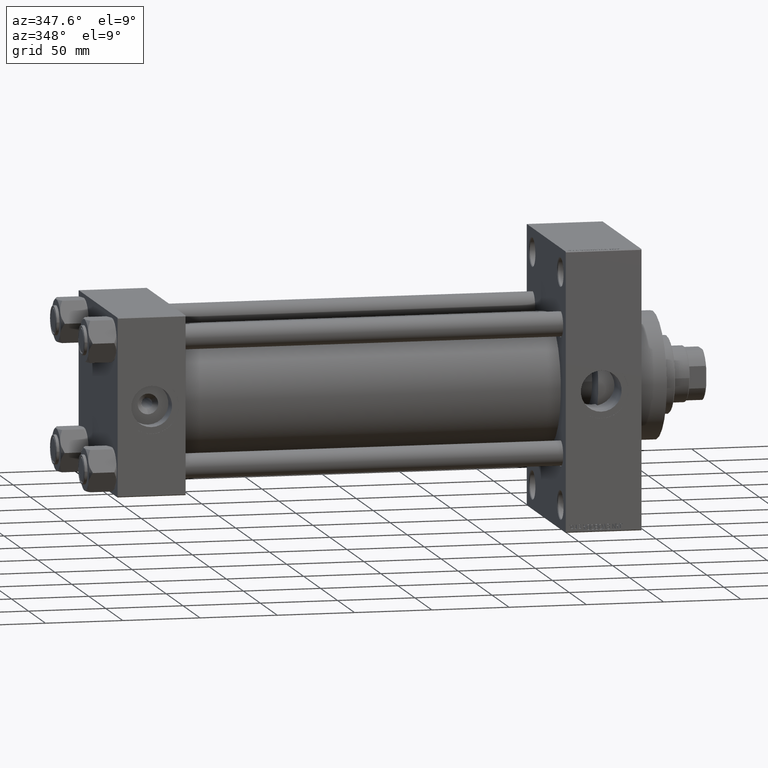
[diagram: clean part render]
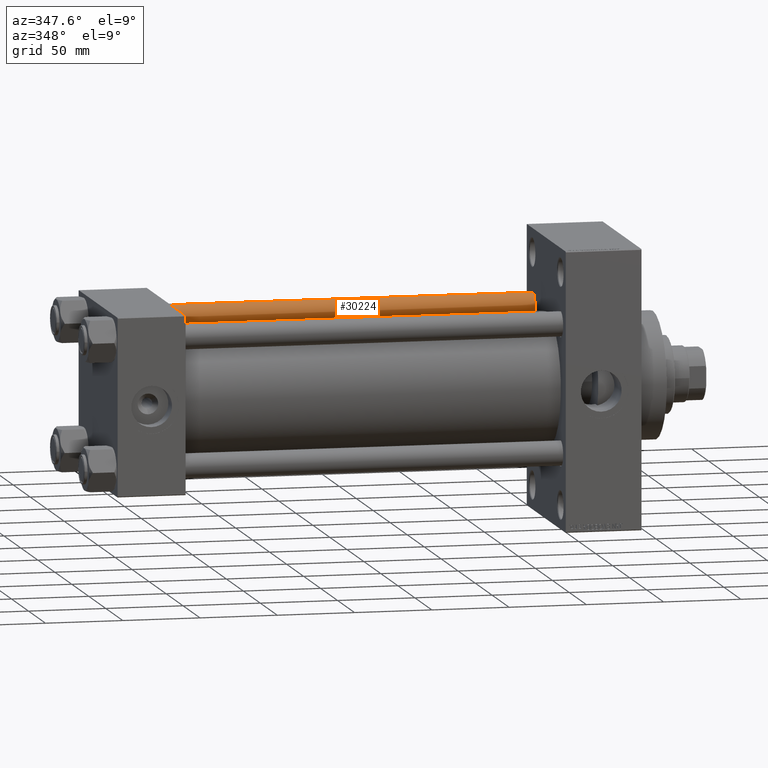
[diagram: same view with one face highlighted and labeled with its STEP entity id]
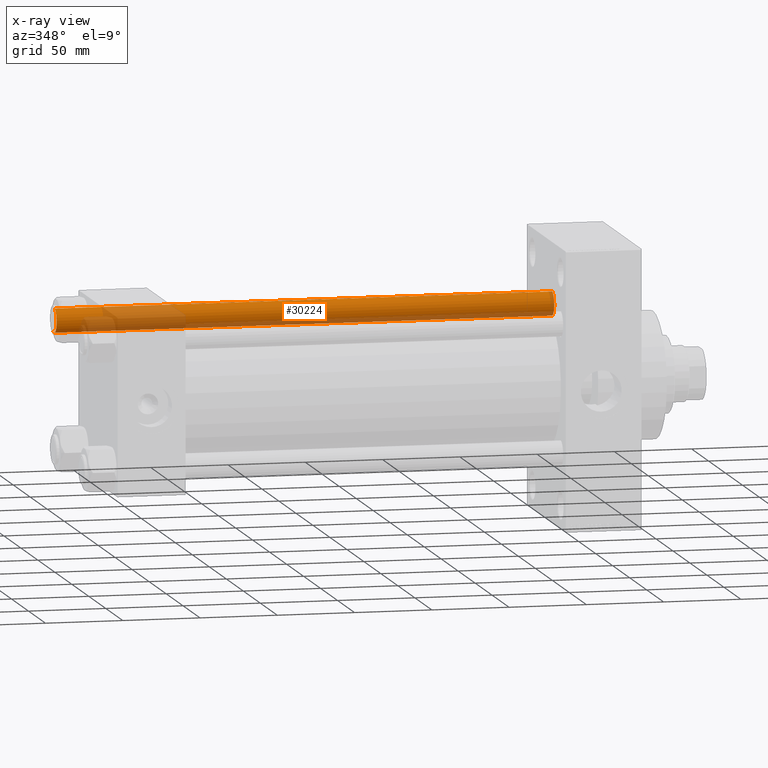
[diagram: x-ray of the same camera — body ghosted, the highlighted face saturated]
A machine part, auxiliary view. The second image highlights one B-rep face of the part: STEP entity #30224.
The next image is the same camera in x-ray: the body ghosted, the highlighted face saturated — about 32% of this face is hidden behind the body in this view.
In plain terms, the highlighted cylindrical surface (edge-blend (fillet) strip) has radius 8 mm, axis along (-1, -0, 0).
Its self-contained STEP definition (entity closure, byte-faithful):
#2716 = CIRCLE ( 'NONE', #29663, 8.000000000000000000 ) ;
#3027 = ORIENTED_EDGE ( 'NONE', *, *, #6886, .T. ) ;
#4081 = EDGE_CURVE ( 'NONE', #8174, #45672, #30940, .T. ) ;
#5683 = CIRCLE ( 'NONE', #44930, 8.000000000000000000 ) ;
#6159 = DIRECTION ( 'NONE',  ( -1.000000000000000000, 0.000000000000000000, 0.000000000000000000 ) ) ;
#6886 = EDGE_CURVE ( 'NONE', #32280, #45672, #2716, .T. ) ;
#8174 = VERTEX_POINT ( 'NONE', #11713 ) ;
#10228 = EDGE_CURVE ( 'NONE', #42285, #32280, #10539, .T. ) ;
#10539 = LINE ( 'NONE', #21608, #35921 ) ;
#10595 = DIRECTION ( 'NONE',  ( -0.000000000000000000, -0.000000000000000000, 1.000000000000000000 ) ) ;
#11713 = CARTESIAN_POINT ( 'NONE',  ( 8.000000000000000000, 9.797174393178825657E-16, 322.5000000000000000 ) ) ;
#20099 = DIRECTION ( 'NONE',  ( -0.000000000000000000, -0.000000000000000000, -1.000000000000000000 ) ) ;
#21608 = CARTESIAN_POINT ( 'NONE',  ( -8.000000000000000000, 0.000000000000000000, 323.0000000000000000 ) ) ;
#22819 = DIRECTION ( 'NONE',  ( 0.000000000000000000, 0.000000000000000000, -1.000000000000000000 ) ) ;
#23817 = CARTESIAN_POINT ( 'NONE',  ( -8.000000000000000000, 0.000000000000000000, 0.5000000000000004441 ) ) ;
#24477 = FACE_OUTER_BOUND ( 'NONE', #24944, .T. ) ;
#24944 = EDGE_LOOP ( 'NONE', ( #47622, #44960, #39557, #3027 ) ) ;
#25281 = DIRECTION ( 'NONE',  ( 1.000000000000000000, 0.000000000000000000, 0.000000000000000000 ) ) ;
#29663 = AXIS2_PLACEMENT_3D ( 'NONE', #43579, #10595, #25281 ) ;
#30224 = ADVANCED_FACE ( 'NONE', ( #24477 ), #43731, .T. ) ;
#30271 = CARTESIAN_POINT ( 'NONE',  ( 0.000000000000000000, 0.000000000000000000, 322.5000000000000000 ) ) ;
#30940 = LINE ( 'NONE', #38880, #34311 ) ;
#30988 = AXIS2_PLACEMENT_3D ( 'NONE', #43249, #39161, #6159 ) ;
#32280 = VERTEX_POINT ( 'NONE', #23817 ) ;
#32930 = DIRECTION ( 'NONE',  ( -0.000000000000000000, -0.000000000000000000, -1.000000000000000000 ) ) ;
#34311 = VECTOR ( 'NONE', #20099, 1000.000000000000000 ) ;
#35921 = VECTOR ( 'NONE', #32930, 1000.000000000000000 ) ;
#36384 = DIRECTION ( 'NONE',  ( 1.000000000000000000, 0.000000000000000000, 0.000000000000000000 ) ) ;
#37777 = CARTESIAN_POINT ( 'NONE',  ( -8.000000000000000000, 0.000000000000000000, 322.5000000000000000 ) ) ;
#38880 = CARTESIAN_POINT ( 'NONE',  ( 8.000000000000000000, 9.797174393178825657E-16, 323.0000000000000000 ) ) ;
#39161 = DIRECTION ( 'NONE',  ( -0.000000000000000000, -0.000000000000000000, -1.000000000000000000 ) ) ;
#39557 = ORIENTED_EDGE ( 'NONE', *, *, #10228, .T. ) ;
#40579 = CARTESIAN_POINT ( 'NONE',  ( 8.000000000000000000, 9.797174393178825657E-16, 0.5000000000000004441 ) ) ;
#42285 = VERTEX_POINT ( 'NONE', #37777 ) ;
#43249 = CARTESIAN_POINT ( 'NONE',  ( 0.000000000000000000, 0.000000000000000000, 323.0000000000000000 ) ) ;
#43579 = CARTESIAN_POINT ( 'NONE',  ( 0.000000000000000000, 0.000000000000000000, 0.5000000000000004441 ) ) ;
#43731 = CYLINDRICAL_SURFACE ( 'NONE', #30988, 8.000000000000000000 ) ;
#44930 = AXIS2_PLACEMENT_3D ( 'NONE', #30271, #22819, #36384 ) ;
#44960 = ORIENTED_EDGE ( 'NONE', *, *, #46428, .T. ) ;
#45672 = VERTEX_POINT ( 'NONE', #40579 ) ;
#46428 = EDGE_CURVE ( 'NONE', #8174, #42285, #5683, .T. ) ;
#47622 = ORIENTED_EDGE ( 'NONE', *, *, #4081, .F. ) ;